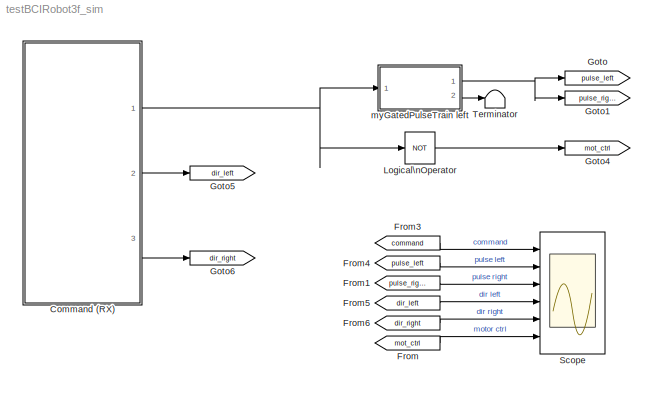
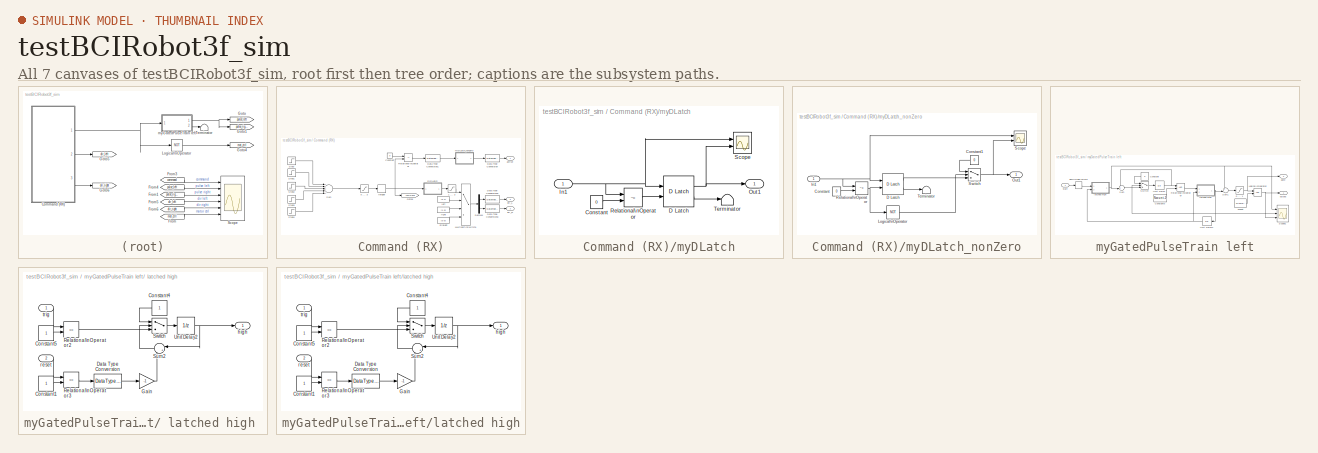
[diagram: thumbnail index - all 7 canvases of the model, root first then tree order]
MODEL testBCIRobot3f_sim
KIND model
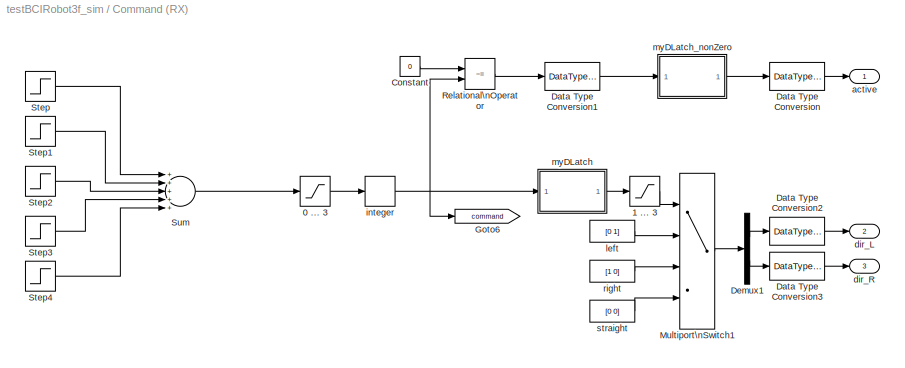
BLOCK [SubSystem] Command (RX)
  Ports = [0, 3]
  RequestExecContextInheritance = off
  SID = 1
BLOCK [Constant] Command (RX)/ left 
  OutDataTypeStr = double
  SID = 2
  Value = [0 1]
BLOCK [Constant] Command (RX)/ right 
  OutDataTypeStr = double
  SID = 3
  Value = [1 0]
BLOCK [Constant] Command (RX)/ straight 
  OutDataTypeStr = double
  SID = 4
  Value = [0 0]
BLOCK [Saturate] Command (RX)/0 ... 3
  InputPortMap = u0
  LowerLimit = 0
  Ports = [1, 1]
  SID = 5
  SampleTime = 0.002
  UpperLimit = 3
BLOCK [Saturate] Command (RX)/1 ... 3
  InputPortMap = u0
  LowerLimit = 1
  Ports = [1, 1]
  SID = 6
  UpperLimit = 3
BLOCK [Constant] Command (RX)/Constant
  SID = 7
  Value = 0
BLOCK [DataTypeConversion] Command (RX)/Data Type Conversion
  OutDataTypeStr = double
  SID = 8
BLOCK [DataTypeConversion] Command (RX)/Data Type Conversion1
  OutDataTypeStr = double
  SID = 9
BLOCK [DataTypeConversion] Command (RX)/Data Type Conversion2
  OutDataTypeStr = double
  SID = 10
BLOCK [DataTypeConversion] Command (RX)/Data Type Conversion3
  OutDataTypeStr = double
  SID = 11
BLOCK [Demux] Command (RX)/Demux1
  Outputs = 2
  Ports = [1, 2]
  SID = 12
BLOCK [Goto] Command (RX)/Goto6
  GotoTag = command
  SID = 13
  TagVisibility = global
BLOCK [MultiPortSwitch] Command (RX)/Multiport\nSwitch1
  InputSameDT = off
  Ports = [4, 1]
  SID = 14
BLOCK [RelationalOperator] Command (RX)/Relational\nOperator
  InputSameDT = off
  Operator = ~=
  OutDataTypeStr = uint(8)
  Ports = [2, 1]
  SID = 15
BLOCK [Step] Command (RX)/Step
  After = 3
  SID = 16
  SampleTime = 0
BLOCK [Step] Command (RX)/Step1
  After = -2
  SID = 17
  SampleTime = 0
  Time = 2
BLOCK [Step] Command (RX)/Step2
  After = -1
  SID = 18
  SampleTime = 0
  Time = 2.1
BLOCK [Step] Command (RX)/Step3
  After = 2
  SID = 19
  SampleTime = 0
  Time = 4
BLOCK [Step] Command (RX)/Step4
  After = -2
  SID = 20
  SampleTime = 0
  Time = 4.2
BLOCK [Sum] Command (RX)/Sum
  InputSameDT = off
  Inputs = +++++
  OutDataTypeStr = Inherit: Inherit via internal rule
  Ports = [5, 1]
  SID = 21
BLOCK [Outport] Command (RX)/active
  IconDisplay = Port number
  SID = 42
BLOCK [Outport] Command (RX)/dir_L
  IconDisplay = Port number
  Port = 2
  SID = 43
BLOCK [Outport] Command (RX)/dir_R
  IconDisplay = Port number
  Port = 3
  SID = 44
BLOCK [Quantizer] Command (RX)/integer
  QuantizationInterval = 1
  SID = 22
BLOCK [SubSystem] Command (RX)/myDLatch
  Ports = [1, 1]
  RequestExecContextInheritance = off
  SID = 23
BLOCK [Constant] Command (RX)/myDLatch/Constant
  SID = 25
  Value = 0
BLOCK [Reference] Command (RX)/myDLatch/D Latch  REF=simulink_extras/Flip Flops/D Latch
  FunctionWithSeparateData = off
  Ports = [2, 2]
  RTWMemSecDataConstants = Inherit from model
  RTWMemSecDataInternal = Inherit from model
  RTWMemSecDataParameters = Inherit from model
  RTWMemSecFuncExecute = Inherit from model
  RTWMemSecFuncInitTerm = Inherit from model
  SID = 26
  ShowPortLabels = FromPortIcon
  SourceBlock = simulink_extras/Flip Flops/D Latch
  SourceProductBaseCode = SL
  SourceProductName = Simulink
  SourceType = DLatch
  SystemSampleTime = -1
BLOCK [Inport] Command (RX)/myDLatch/In1
  IconDisplay = Port number
  SID = 24
BLOCK [Outport] Command (RX)/myDLatch/Out1
  IconDisplay = Port number
  SID = 30
BLOCK [RelationalOperator] Command (RX)/myDLatch/Relational\nOperator
  InputSameDT = off
  Operator = ~=
  Ports = [2, 1]
  SID = 27
BLOCK [Scope] Command (RX)/myDLatch/Scope
  Floating = off
  NumInputPorts = 2
  Ports = [2]
  SID = 28
  ScopeSpecificationString = C++SS(StrPVP('Location','[188, 365, 512, 604]'),StrPVP('Open','off'),MxPVP('AxesTitles',54,'struct(''axes1'',''%<SignalLabel>'',''axes2'',''%<SignalLabel>'')'),StrPVP('YMin','-5~-5'),StrPVP('YMax','5~5'),StrPVP('SaveName','ScopeData3'),StrPVP('DataFormat','StructureWithTime'),StrPVP('LimitDataPoints','on'),StrPVP('Decimation','1'),StrPVP('BlockParamSampleInput','off'))
BLOCK [Terminator] Command (RX)/myDLatch/Terminator
  SID = 29
BLOCK [SubSystem] Command (RX)/myDLatch_nonZero
  Ports = [1, 1]
  RequestExecContextInheritance = off
  SID = 31
BLOCK [Constant] Command (RX)/myDLatch_nonZero/Constant
  SID = 33
  Value = 0
BLOCK [Constant] Command (RX)/myDLatch_nonZero/Constant1
  SID = 34
  Value = 0
BLOCK [Reference] Command (RX)/myDLatch_nonZero/D Latch  REF=simulink_extras/Flip Flops/D Latch
  FunctionWithSeparateData = off
  Ports = [2, 2]
  RTWMemSecDataConstants = Inherit from model
  RTWMemSecDataInternal = Inherit from model
  RTWMemSecDataParameters = Inherit from model
  RTWMemSecFuncExecute = Inherit from model
  RTWMemSecFuncInitTerm = Inherit from model
  SID = 35
  ShowPortLabels = FromPortIcon
  SourceBlock = simulink_extras/Flip Flops/D Latch
  SourceProductBaseCode = SL
  SourceProductName = Simulink
  SourceType = DLatch
  SystemSampleTime = -1
BLOCK [Inport] Command (RX)/myDLatch_nonZero/In1
  IconDisplay = Port number
  SID = 32
BLOCK [Logic] Command (RX)/myDLatch_nonZero/Logical\nOperator
  AllPortsSameDT = off
  Operator = NOT
  Ports = [1, 1]
  SID = 36
BLOCK [Outport] Command (RX)/myDLatch_nonZero/Out1
  IconDisplay = Port number
  SID = 41
BLOCK [RelationalOperator] Command (RX)/myDLatch_nonZero/Relational\nOperator
  InputSameDT = off
  Operator = ~=
  Ports = [2, 1]
  SID = 37
BLOCK [Scope] Command (RX)/myDLatch_nonZero/Scope
  Floating = off
  NumInputPorts = 2
  Ports = [2]
  SID = 38
  ScopeSpecificationString = C++SS(StrPVP('Location','[188, 365, 512, 604]'),StrPVP('Open','off'),MxPVP('AxesTitles',54,'struct(''axes1'',''%<SignalLabel>'',''axes2'',''%<SignalLabel>'')'),StrPVP('YMin','-5~-5'),StrPVP('YMax','5~5'),StrPVP('SaveName','ScopeData3'),StrPVP('DataFormat','StructureWithTime'),StrPVP('LimitDataPoints','on'),StrPVP('Decimation','1'),StrPVP('BlockParamSampleInput','off'))
BLOCK [Switch] Command (RX)/myDLatch_nonZero/Switch
  Criteria = u2 > Threshold
  InputSameDT = off
  SID = 39
  Threshold = 0.5
BLOCK [Terminator] Command (RX)/myDLatch_nonZero/Terminator
  SID = 40
BLOCK [From] From
  CloseFcn = tagdialog Close
  GotoTag = mot_ctrl
  SID = 45
BLOCK [From] From1
  CloseFcn = tagdialog Close
  GotoTag = pulse_right
  SID = 46
BLOCK [From] From3
  CloseFcn = tagdialog Close
  GotoTag = command
  SID = 47
  TagVisibility = global
BLOCK [From] From4
  CloseFcn = tagdialog Close
  GotoTag = pulse_left
  SID = 48
BLOCK [From] From5
  CloseFcn = tagdialog Close
  GotoTag = dir_left
  SID = 49
BLOCK [From] From6
  CloseFcn = tagdialog Close
  GotoTag = dir_right
  SID = 50
BLOCK [Goto] Goto
  GotoTag = pulse_left
  SID = 51
BLOCK [Goto] Goto1
  GotoTag = pulse_right
  SID = 52
BLOCK [Goto] Goto4
  GotoTag = mot_ctrl
  SID = 53
BLOCK [Goto] Goto5
  GotoTag = dir_left
  SID = 54
BLOCK [Goto] Goto6
  GotoTag = dir_right
  SID = 55
BLOCK [Logic] Logical\nOperator
  AllPortsSameDT = off
  Operator = NOT
  Ports = [1, 1]
  SID = 56
BLOCK [Scope] Scope
  Floating = off
  NumInputPorts = 6
  Ports = [6]
  SID = 57
  ScopeSpecificationString = C++SS(StrPVP('Location','[471, 155, 971, 660]'),StrPVP('Open','off'),StrPVP('ZoomMode','xonly'),MxPVP('AxesTitles',54,'struct(''axes1'',''%<SignalLabel>'',''axes2'',''%<SignalLabel>'',''axes3'',''%<SignalLabel>'',''axes4'',''%<SignalLabel>'',''axes5'',''%<SignalLabel>'',''axes6'',''%<SignalLabel>'')'),StrPVP('TimeRange','10'),StrPVP('YMin','-1~-5~-5~-5~-5~-5'),StrPVP('YMax','4~5~5~5~5~5'),StrPVP('...<+128ch>
BLOCK [Terminator] Terminator
  SID = 58
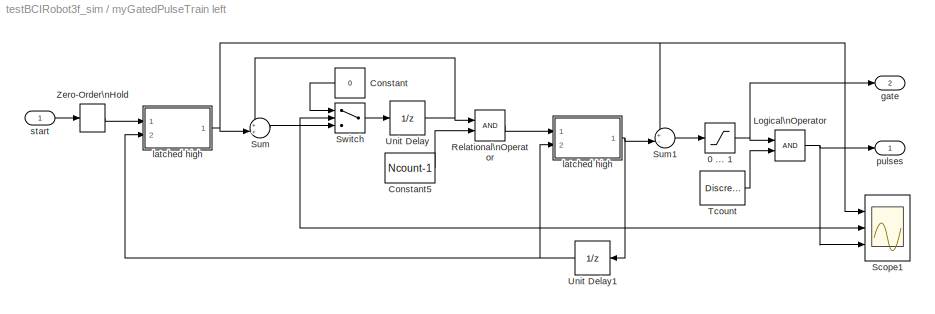
BLOCK [SubSystem] myGatedPulseTrain left
  Ports = [1, 2]
  RequestExecContextInheritance = off
  SID = 59
BLOCK [SubSystem] myGatedPulseTrain left/ latched high 
  Ports = [2, 1]
  RequestExecContextInheritance = off
  SID = 61
BLOCK [Constant] myGatedPulseTrain left/ latched high /Constant1
  SID = 64
BLOCK [Constant] myGatedPulseTrain left/ latched high /Constant4
  SID = 65
BLOCK [Constant] myGatedPulseTrain left/ latched high /Constant5
  SID = 66
BLOCK [DataTypeConversion] myGatedPulseTrain left/ latched high /Data Type Conversion
  OutDataTypeStr = double
  SID = 67
BLOCK [Gain] myGatedPulseTrain left/ latched high /Gain
  Gain = -1
  SID = 68
BLOCK [RelationalOperator] myGatedPulseTrain left/ latched high /Relational\nOperator2
  InputSameDT = off
  Operator = ==
  OutDataTypeStr = uint(8)
  Ports = [2, 1]
  SID = 69
BLOCK [RelationalOperator] myGatedPulseTrain left/ latched high /Relational\nOperator3
  InputSameDT = off
  Operator = ==
  OutDataTypeStr = uint(8)
  Ports = [2, 1]
  SID = 70
BLOCK [Sum] myGatedPulseTrain left/ latched high /Sum2
  IconShape = round
  InputSameDT = off
  Inputs = |++
  OutDataTypeStr = Inherit: Inherit via internal rule
  Ports = [2, 1]
  SID = 71
  SaturateOnIntegerOverflow = off
BLOCK [Switch] myGatedPulseTrain left/ latched high /Switch
  Criteria = u2 > Threshold
  InputSameDT = off
  SID = 72
  SaturateOnIntegerOverflow = off
BLOCK [UnitDelay] myGatedPulseTrain left/ latched high /Unit Delay2
  SID = 73
  SampleTime = -1
BLOCK [Outport] myGatedPulseTrain left/ latched high /high
  IconDisplay = Port number
  SID = 74
BLOCK [Inport] myGatedPulseTrain left/ latched high /reset
  IconDisplay = Port number
  Port = 2
  SID = 63
BLOCK [Inport] myGatedPulseTrain left/ latched high /trig
  IconDisplay = Port number
  SID = 62
BLOCK [Saturate] myGatedPulseTrain left/0 ... 1
  InputPortMap = u0
  LowerLimit = 0
  Ports = [1, 1]
  SID = 75
  UpperLimit = 1
BLOCK [Constant] myGatedPulseTrain left/Constant
  SID = 76
  Value = 0
BLOCK [Constant] myGatedPulseTrain left/Constant5
  SID = 77
  Value = Ncount-1
BLOCK [Logic] myGatedPulseTrain left/Logical\nOperator
  AllPortsSameDT = off
  Ports = [2, 1]
  SID = 78
BLOCK [RelationalOperator] myGatedPulseTrain left/Relational\nOperator
  InputSameDT = off
  OutDataTypeStr = uint(8)
  Ports = [2, 1]
  SID = 79
BLOCK [Scope] myGatedPulseTrain left/Scope1
  Floating = off
  NumInputPorts = 3
  Ports = [3]
  SID = 80
  ScopeSpecificationString = C++SS(StrPVP('Location','[256, 383, 656, 652]'),StrPVP('Open','off'),StrPVP('ZoomMode','xonly'),MxPVP('AxesTitles',54,'struct(''axes1'',''%<SignalLabel>'',''axes2'',''%<SignalLabel>'',''axes3'',''%<SignalLabel>'')'),StrPVP('YMin','-5~-5~-5'),StrPVP('YMax','5~5~5'),StrPVP('SaveName','ScopeData1'),StrPVP('DataFormat','StructureWithTime'),StrPVP('LimitDataPoints','on'),StrPVP('Decimation','1'),StrPVP...<+32ch>
BLOCK [Sum] myGatedPulseTrain left/Sum
  IconShape = round
  InputSameDT = off
  Inputs = ++|
  OutDataTypeStr = Inherit: Inherit via internal rule
  Ports = [2, 1]
  SID = 81
  SaturateOnIntegerOverflow = off
BLOCK [Sum] myGatedPulseTrain left/Sum1
  IconShape = round
  InputSameDT = off
  Inputs = +-|
  OutDataTypeStr = Inherit: Inherit via internal rule
  Ports = [2, 1]
  SID = 82
  SaturateOnIntegerOverflow = off
BLOCK [Switch] myGatedPulseTrain left/Switch
  Criteria = u2 > Threshold
  InputSameDT = off
  SID = 83
  SaturateOnIntegerOverflow = off
BLOCK [DiscretePulseGenerator] myGatedPulseTrain left/Tcount
  Ports = [0, 1]
  SID = 84
  SampleTime = Tcount
BLOCK [UnitDelay] myGatedPulseTrain left/Unit Delay
  SID = 85
  SampleTime = Tcount
BLOCK [UnitDelay] myGatedPulseTrain left/Unit Delay1
  SID = 86
  SampleTime = Tcount
BLOCK [ZeroOrderHold] myGatedPulseTrain left/Zero-Order\nHold
  SID = 87
  SampleTime = Tcount
BLOCK [Outport] myGatedPulseTrain left/gate
  IconDisplay = Port number
  Port = 2
  SID = 103
BLOCK [SubSystem] myGatedPulseTrain left/latched high
  Ports = [2, 1]
  RequestExecContextInheritance = off
  SID = 88
BLOCK [Constant] myGatedPulseTrain left/latched high/Constant1
  SID = 91
BLOCK [Constant] myGatedPulseTrain left/latched high/Constant4
  SID = 92
BLOCK [Constant] myGatedPulseTrain left/latched high/Constant5
  SID = 93
BLOCK [DataTypeConversion] myGatedPulseTrain left/latched high/Data Type Conversion
  OutDataTypeStr = double
  SID = 94
BLOCK [Gain] myGatedPulseTrain left/latched high/Gain
  Gain = -1
  SID = 95
BLOCK [RelationalOperator] myGatedPulseTrain left/latched high/Relational\nOperator2
  InputSameDT = off
  Operator = ==
  OutDataTypeStr = uint(8)
  Ports = [2, 1]
  SID = 96
BLOCK [RelationalOperator] myGatedPulseTrain left/latched high/Relational\nOperator3
  InputSameDT = off
  Operator = ==
  OutDataTypeStr = uint(8)
  Ports = [2, 1]
  SID = 97
BLOCK [Sum] myGatedPulseTrain left/latched high/Sum2
  IconShape = round
  InputSameDT = off
  Inputs = |++
  OutDataTypeStr = Inherit: Inherit via internal rule
  Ports = [2, 1]
  SID = 98
  SaturateOnIntegerOverflow = off
BLOCK [Switch] myGatedPulseTrain left/latched high/Switch
  Criteria = u2 > Threshold
  InputSameDT = off
  SID = 99
  SaturateOnIntegerOverflow = off
BLOCK [UnitDelay] myGatedPulseTrain left/latched high/Unit Delay2
  SID = 100
  SampleTime = -1
BLOCK [Outport] myGatedPulseTrain left/latched high/high
  IconDisplay = Port number
  SID = 101
BLOCK [Inport] myGatedPulseTrain left/latched high/reset
  IconDisplay = Port number
  Port = 2
  SID = 90
BLOCK [Inport] myGatedPulseTrain left/latched high/trig
  IconDisplay = Port number
  SID = 89
BLOCK [Outport] myGatedPulseTrain left/pulses
  IconDisplay = Port number
  SID = 102
BLOCK [Inport] myGatedPulseTrain left/start
  IconDisplay = Port number
  SID = 60
LINE Command (RX)/ left :1 -> Command (RX)/Multiport\nSwitch1:2
LINE Command (RX)/ right :1 -> Command (RX)/Multiport\nSwitch1:3
LINE Command (RX)/ straight :1 -> Command (RX)/Multiport\nSwitch1:4
LINE Command (RX)/0 ... 3:1 -> Command (RX)/integer:1
LINE Command (RX)/1 ... 3:1 -> Command (RX)/Multiport\nSwitch1:1
LINE Command (RX)/Constant:1 -> Command (RX)/Relational\nOperator:1
LINE Command (RX)/Data Type Conversion1:1 -> Command (RX)/myDLatch_nonZero:1
LINE Command (RX)/Data Type Conversion2:1 -> Command (RX)/dir_L:1
LINE Command (RX)/Data Type Conversion3:1 -> Command (RX)/dir_R:1
LINE Command (RX)/Data Type Conversion:1 -> Command (RX)/active:1
LINE Command (RX)/Demux1:1 -> Command (RX)/Data Type Conversion2:1
LINE Command (RX)/Demux1:2 -> Command (RX)/Data Type Conversion3:1
LINE Command (RX)/Multiport\nSwitch1:1 -> Command (RX)/Demux1:1
LINE Command (RX)/Relational\nOperator:1 -> Command (RX)/Data Type Conversion1:1
LINE Command (RX)/Step1:1 -> Command (RX)/Sum:2
LINE Command (RX)/Step2:1 -> Command (RX)/Sum:3
LINE Command (RX)/Step3:1 -> Command (RX)/Sum:4
LINE Command (RX)/Step4:1 -> Command (RX)/Sum:5
LINE Command (RX)/Step:1 -> Command (RX)/Sum:1
LINE Command (RX)/Sum:1 -> Command (RX)/0 ... 3:1
NET Command (RX)/integer:1 -> Command (RX)/Goto6:1, Command (RX)/Relational\nOperator:2, Command (RX)/myDLatch:1
LINE Command (RX)/myDLatch/Constant:1 -> Command (RX)/myDLatch/Relational\nOperator:2
NET Command (RX)/myDLatch/D Latch:1 -> Command (RX)/myDLatch/Out1:1, Command (RX)/myDLatch/Scope:2
LINE Command (RX)/myDLatch/D Latch:2 -> Command (RX)/myDLatch/Terminator:1
NET Command (RX)/myDLatch/In1:1 -> Command (RX)/myDLatch/D Latch:1, Command (RX)/myDLatch/Relational\nOperator:1, Command (RX)/myDLatch/Scope:1
LINE Command (RX)/myDLatch/Relational\nOperator:1 -> Command (RX)/myDLatch/D Latch:2
LINE Command (RX)/myDLatch:1 -> Command (RX)/1 ... 3:1
LINE Command (RX)/myDLatch_nonZero/Constant1:1 -> Command (RX)/myDLatch_nonZero/Switch:1
LINE Command (RX)/myDLatch_nonZero/Constant:1 -> Command (RX)/myDLatch_nonZero/Relational\nOperator:2
LINE Command (RX)/myDLatch_nonZero/D Latch:1 -> Command (RX)/myDLatch_nonZero/Switch:3
LINE Command (RX)/myDLatch_nonZero/D Latch:2 -> Command (RX)/myDLatch_nonZero/Terminator:1
NET Command (RX)/myDLatch_nonZero/In1:1 -> Command (RX)/myDLatch_nonZero/D Latch:1, Command (RX)/myDLatch_nonZero/Relational\nOperator:1, Command (RX)/myDLatch_nonZero/Scope:1
LINE Command (RX)/myDLatch_nonZero/Logical\nOperator:1 -> Command (RX)/myDLatch_nonZero/Switch:2
NET Command (RX)/myDLatch_nonZero/Relational\nOperator:1 -> Command (RX)/myDLatch_nonZero/D Latch:2, Command (RX)/myDLatch_nonZero/Logical\nOperator:1
NET Command (RX)/myDLatch_nonZero/Switch:1 -> Command (RX)/myDLatch_nonZero/Out1:1, Command (RX)/myDLatch_nonZero/Scope:2
LINE Command (RX)/myDLatch_nonZero:1 -> Command (RX)/Data Type Conversion:1
NET Command (RX):1 -> Logical\nOperator:1, myGatedPulseTrain left:1
LINE Command (RX):2 -> Goto5:1
LINE Command (RX):3 -> Goto6:1
LINE From1:1 -> Scope:3
LINE From3:1 -> Scope:1
LINE From4:1 -> Scope:2
LINE From5:1 -> Scope:4
LINE From6:1 -> Scope:5
LINE From:1 -> Scope:6
LINE Logical\nOperator:1 -> Goto4:1
LINE myGatedPulseTrain left/ latched high /Constant1:1 -> myGatedPulseTrain left/ latched high /Relational\nOperator3:2
LINE myGatedPulseTrain left/ latched high /Constant4:1 -> myGatedPulseTrain left/ latched high /Switch:1
LINE myGatedPulseTrain left/ latched high /Constant5:1 -> myGatedPulseTrain left/ latched high /Relational\nOperator2:2
LINE myGatedPulseTrain left/ latched high /Data Type Conversion:1 -> myGatedPulseTrain left/ latched high /Gain:1
LINE myGatedPulseTrain left/ latched high /Gain:1 -> myGatedPulseTrain left/ latched high /Sum2:2
LINE myGatedPulseTrain left/ latched high /Relational\nOperator2:1 -> myGatedPulseTrain left/ latched high /Switch:3
LINE myGatedPulseTrain left/ latched high /Relational\nOperator3:1 -> myGatedPulseTrain left/ latched high /Data Type Conversion:1
LINE myGatedPulseTrain left/ latched high /Sum2:1 -> myGatedPulseTrain left/ latched high /Switch:2
LINE myGatedPulseTrain left/ latched high /Switch:1 -> myGatedPulseTrain left/ latched high /Unit Delay2:1
NET myGatedPulseTrain left/ latched high /Unit Delay2:1 -> myGatedPulseTrain left/ latched high /Sum2:1, myGatedPulseTrain left/ latched high /high:1
LINE myGatedPulseTrain left/ latched high /reset:1 -> myGatedPulseTrain left/ latched high /Relational\nOperator3:1
LINE myGatedPulseTrain left/ latched high /trig:1 -> myGatedPulseTrain left/ latched high /Relational\nOperator2:1
NET myGatedPulseTrain left/ latched high :1 -> myGatedPulseTrain left/Scope1:2, myGatedPulseTrain left/Sum1:2, myGatedPulseTrain left/Switch:2, myGatedPulseTrain left/Unit Delay1:1
NET myGatedPulseTrain left/0 ... 1:1 -> myGatedPulseTrain left/Logical\nOperator:1, myGatedPulseTrain left/gate:1
LINE myGatedPulseTrain left/Constant5:1 -> myGatedPulseTrain left/Relational\nOperator:2
LINE myGatedPulseTrain left/Constant:1 -> myGatedPulseTrain left/Switch:1
NET myGatedPulseTrain left/Logical\nOperator:1 -> myGatedPulseTrain left/Scope1:3, myGatedPulseTrain left/pulses:1
LINE myGatedPulseTrain left/Relational\nOperator:1 -> myGatedPulseTrain left/ latched high :1
LINE myGatedPulseTrain left/Sum1:1 -> myGatedPulseTrain left/0 ... 1:1
LINE myGatedPulseTrain left/Sum:1 -> myGatedPulseTrain left/Switch:3
LINE myGatedPulseTrain left/Switch:1 -> myGatedPulseTrain left/Unit Delay:1
LINE myGatedPulseTrain left/Tcount:1 -> myGatedPulseTrain left/Logical\nOperator:2
NET myGatedPulseTrain left/Unit Delay1:1 -> myGatedPulseTrain left/ latched high :2, myGatedPulseTrain left/latched high:2
NET myGatedPulseTrain left/Unit Delay:1 -> myGatedPulseTrain left/Relational\nOperator:1, myGatedPulseTrain left/Sum:1
LINE myGatedPulseTrain left/Zero-Order\nHold:1 -> myGatedPulseTrain left/latched high:1
LINE myGatedPulseTrain left/latched high/Constant1:1 -> myGatedPulseTrain left/latched high/Relational\nOperator3:2
LINE myGatedPulseTrain left/latched high/Constant4:1 -> myGatedPulseTrain left/latched high/Switch:1
LINE myGatedPulseTrain left/latched high/Constant5:1 -> myGatedPulseTrain left/latched high/Relational\nOperator2:2
LINE myGatedPulseTrain left/latched high/Data Type Conversion:1 -> myGatedPulseTrain left/latched high/Gain:1
LINE myGatedPulseTrain left/latched high/Gain:1 -> myGatedPulseTrain left/latched high/Sum2:2
LINE myGatedPulseTrain left/latched high/Relational\nOperator2:1 -> myGatedPulseTrain left/latched high/Switch:3
LINE myGatedPulseTrain left/latched high/Relational\nOperator3:1 -> myGatedPulseTrain left/latched high/Data Type Conversion:1
LINE myGatedPulseTrain left/latched high/Sum2:1 -> myGatedPulseTrain left/latched high/Switch:2
LINE myGatedPulseTrain left/latched high/Switch:1 -> myGatedPulseTrain left/latched high/Unit Delay2:1
NET myGatedPulseTrain left/latched high/Unit Delay2:1 -> myGatedPulseTrain left/latched high/Sum2:1, myGatedPulseTrain left/latched high/high:1
LINE myGatedPulseTrain left/latched high/reset:1 -> myGatedPulseTrain left/latched high/Relational\nOperator3:1
LINE myGatedPulseTrain left/latched high/trig:1 -> myGatedPulseTrain left/latched high/Relational\nOperator2:1
NET myGatedPulseTrain left/latched high:1 -> myGatedPulseTrain left/Scope1:1, myGatedPulseTrain left/Sum1:1, myGatedPulseTrain left/Sum:2
LINE myGatedPulseTrain left/start:1 -> myGatedPulseTrain left/Zero-Order\nHold:1
NET myGatedPulseTrain left:1 -> Goto1:1, Goto:1
LINE myGatedPulseTrain left:2 -> Terminator:1
note: NET lines group one-source signal fan-out (src -> all destinations, sorted); 1:1 wires keep LINE
